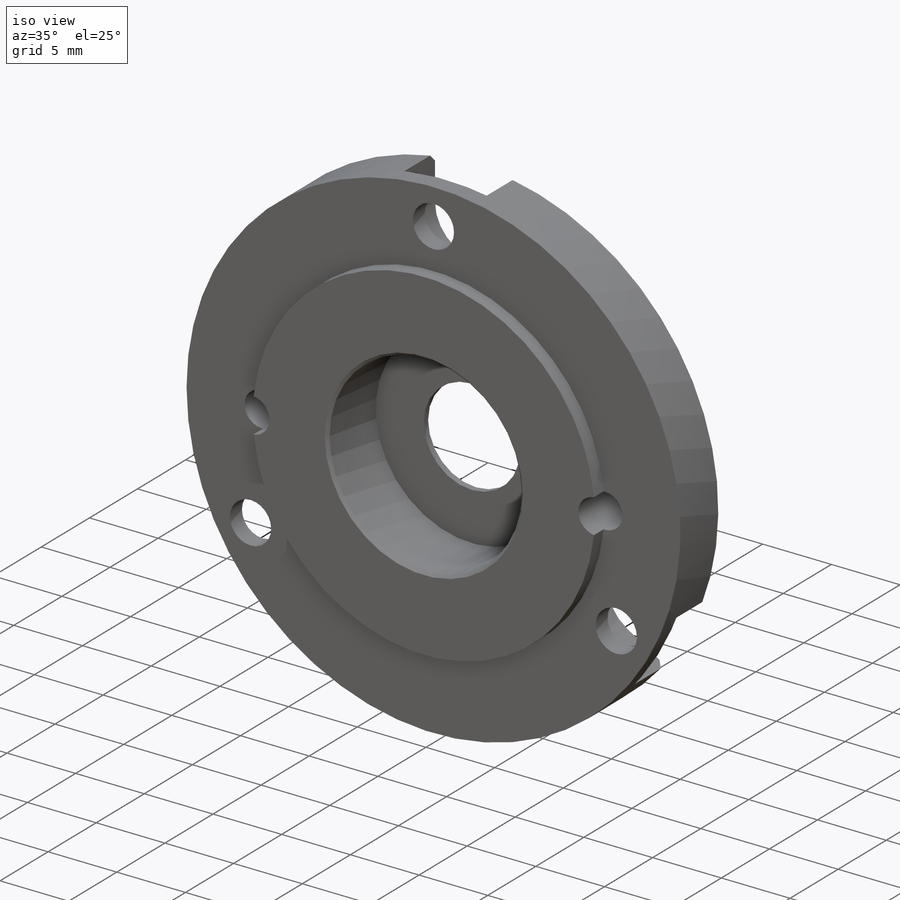
[diagram: iso view]
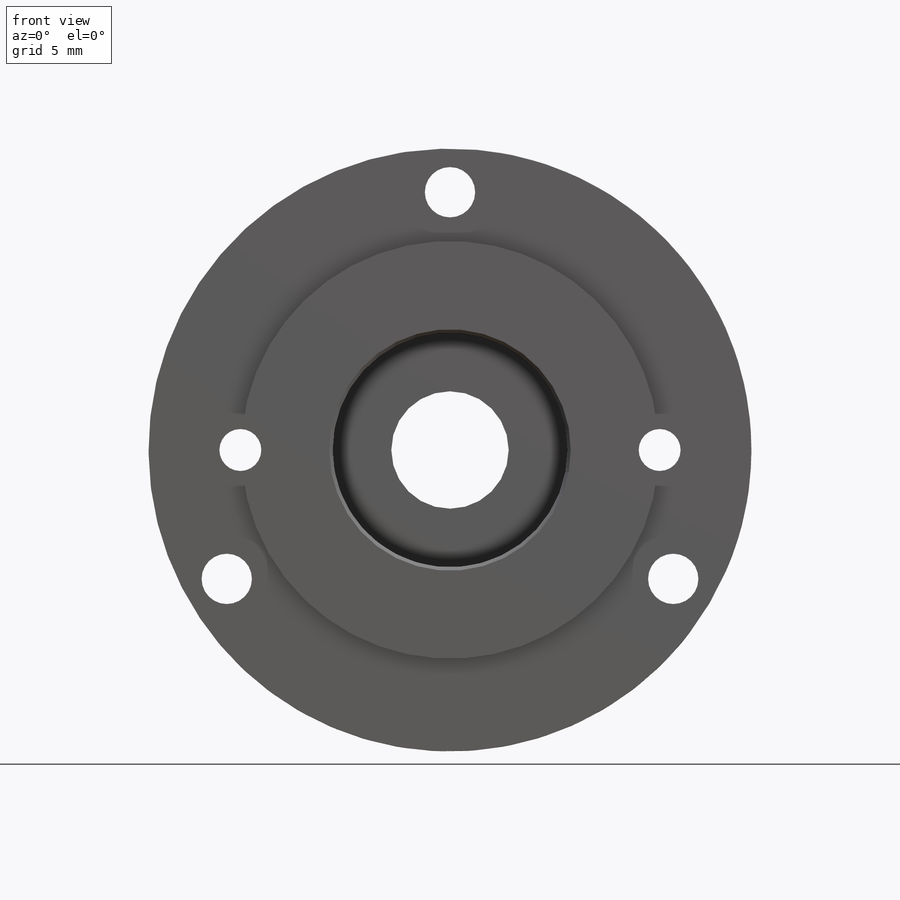
[diagram: front view]
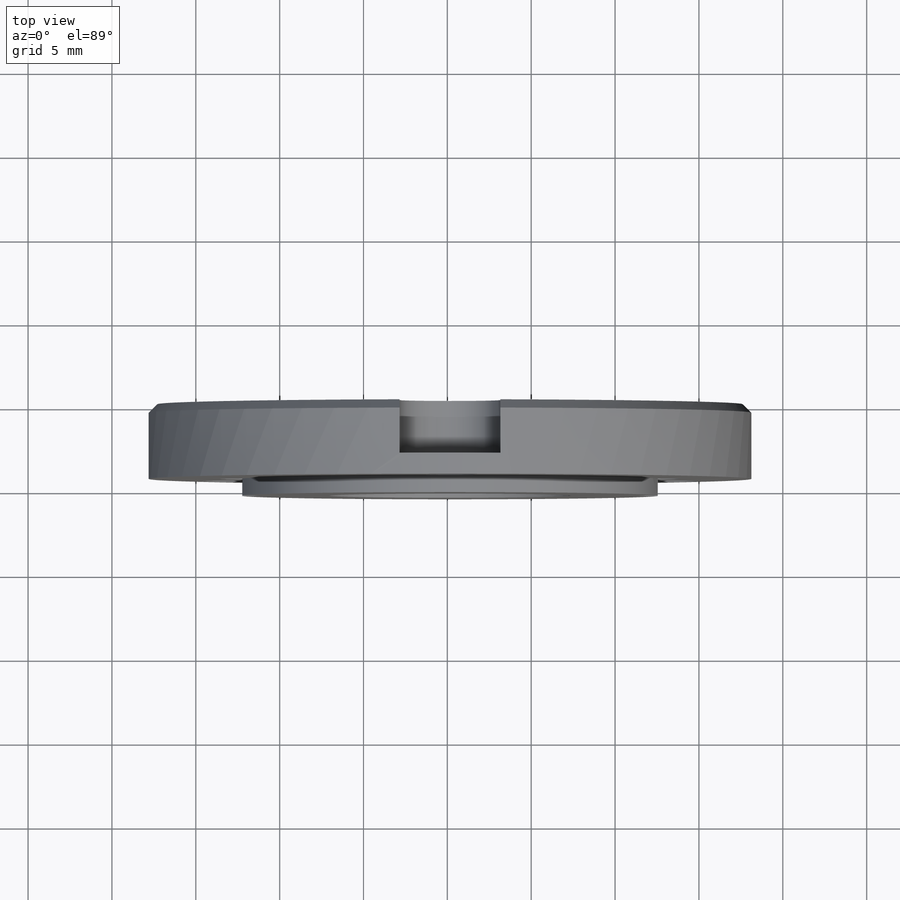
[diagram: top view]
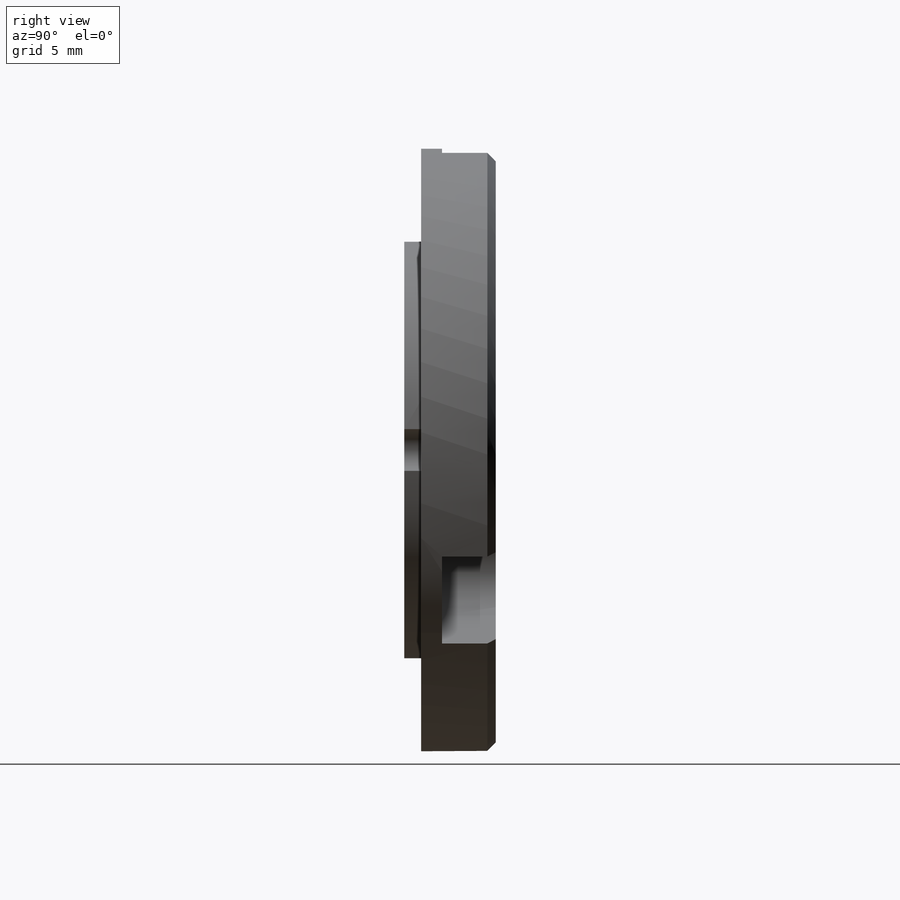
[diagram: right view]
SOLIDWORKS PART (.sldprt)
format: sldprt  version: not decoded by parser v0  size: 291,840 bytes
history: native  units: mm
features: sketch x7, cut_extrude x5, plane x3, extrude x2, chamfer x2, material x1 (+13 scaffold rows collapsed)
feature tree (33):
  scaffold x13  (default folders/planes/origin — collapsed)
  material  "Matériau <non spécifié>"
  plane  "Plan de face"
  plane  "Plan de dessus"
  plane  "Plan de droite"
  sketch  "Esquisse1"  dims[D1=~44.810625mm]
  extrude  "Boss.-Extru.1"  Depth=4.45mm
  sketch  "Esquisse2"  dims[c1.D1=~15.615471mm c1.D4=~1.720006mm c2.D1=~49.64698mm c3.D1=45.0deg c3.D2=~23.695662mm c4.D2=45.0deg c5.D2=~49.64698mm c6.D2=45.0deg c6.D3=15.0mm]
  extrude  "Boss.-Extru.2"  Depth=1mm
  chamfer  "Chanfrein1"  Distance=0.5mm Angle=45deg
  sketch  "Esquisse5"  dims[c1.D3=~1.22689mm c1.D4=~1.007691mm c1.D1=~41.415207mm c2.D1=30.0deg c2.D2=~41.415207mm c3.D2=30.0deg c3.D3=2.6mm c3.D4=15.37mm c3.D5=15.37mm]
  cut_extrude  "Enlèv. mat.-Extru.1"  [1 undecoded]
  sketch  "Esquisse6"  dims[D1=~4.057307mm]
  cut_extrude  "Enlèv. mat.-Extru.2"  [1 undecoded]
  sketch  "Esquisse7"  dims[D1=5.0274mm]
  cut_extrude  "Enlèv. mat.-Extru.3"  Depth=5mm
  sketch  "Esquisse8"  dims[D1=6.0mm D2=3.0mm D3=18.55mm D4=18.55mm D5=3.0mm]
  cut_extrude  "Enlèv. mat.-Extru.4"  Depth=3.2mm
  chamfer  "Chanfrein2"  Distance=0.2mm Angle=45deg
  sketch  "Esquisse9"  dims[D1=12.5mm D2=12.5mm]
  cut_extrude  "Enlèv. mat.-Extru.5"  [1 undecoded]
decode coverage: 13 of 16 modeling features carry decoded parameters
note: ~ marks probable driven/reference dimensions
note: 3 parameter values undecoded
summary: no parameter record found for 3 features
note: suppression state not decoded; provenance and decode notes live in map.json
